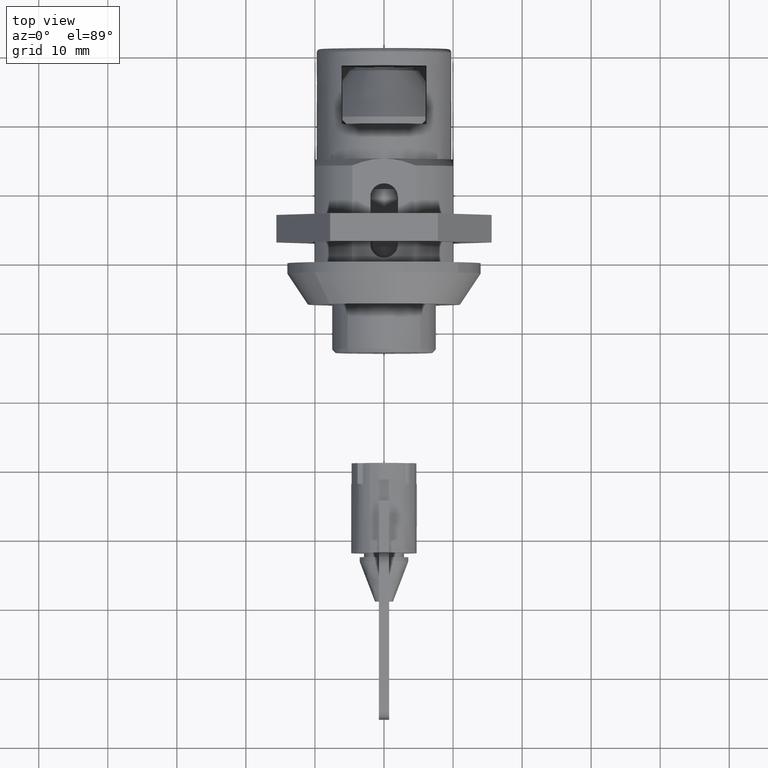
[diagram: clean part render]
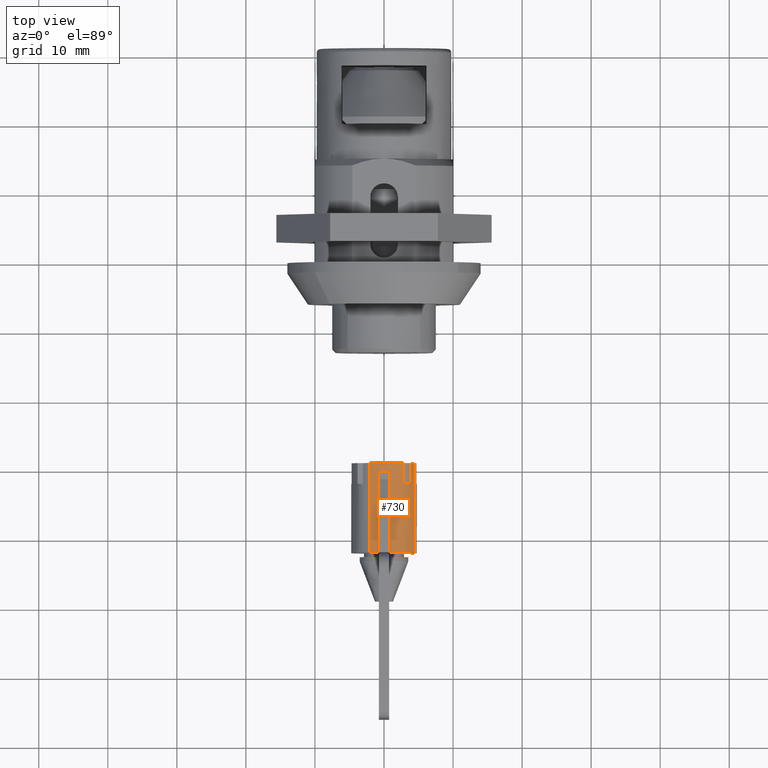
[diagram: same view with one face highlighted and labeled with its STEP entity id]
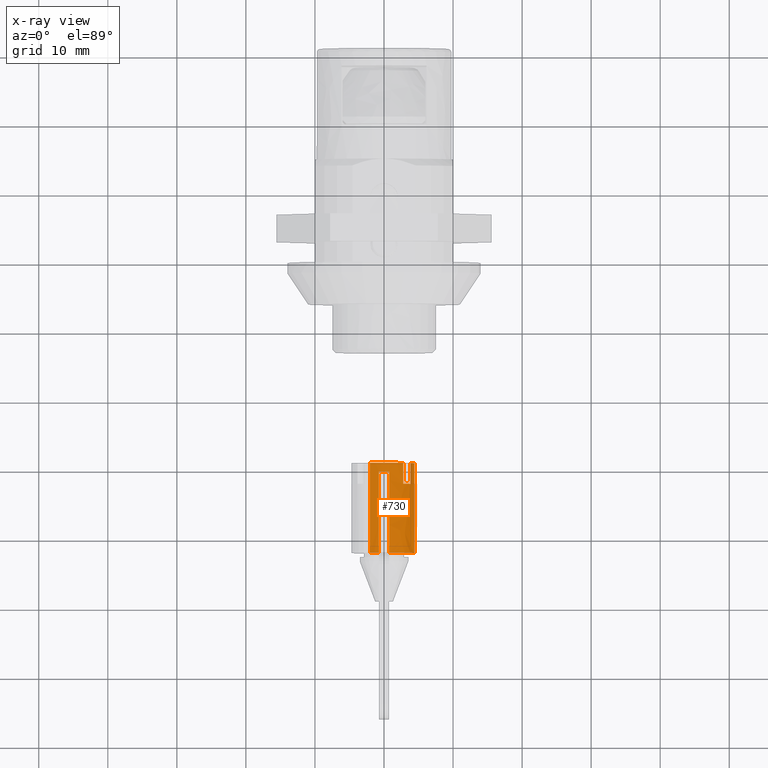
[diagram: x-ray of the same camera — body ghosted, the highlighted face saturated]
A machine part, top view. The second image highlights one B-rep face of the part: STEP entity #730.
The next image is the same camera in x-ray: the body ghosted, the highlighted face saturated — about 0% of this face is hidden behind the body in this view.
In plain terms, the highlighted face is a freeform B-spline surface patch.
Its self-contained STEP definition (entity closure, byte-faithful):
#309=CARTESIAN_POINT('',(-232.000000000000110,2.059428148010018,4.280333597184102));
#310=VERTEX_POINT('',#309);
#329=CARTESIAN_POINT('',(-219.0,2.059428546056810,4.280333405668925));
#330=VERTEX_POINT('',#329);
#331=CARTESIAN_POINT('',(-219.0,2.059428546056810,4.280333405668925));
#332=CARTESIAN_POINT('',(-232.000000000000110,2.059428148010018,4.280333597184102));
#333=QUASI_UNIFORM_CURVE('',1,(#331,#332),.UNSPECIFIED.,.F.,.U.);
#334=EDGE_CURVE('',#330,#310,#333,.T.);
#528=CARTESIAN_POINT('',(-219.0,-4.391110705914510,1.811255577880300));
#529=VERTEX_POINT('',#528);
#537=CARTESIAN_POINT('',(-232.000000000000110,-4.391110795444835,1.811255360827790));
#538=VERTEX_POINT('',#537);
#539=CARTESIAN_POINT('',(-219.0,-4.391110705914510,1.811255577880300));
#540=CARTESIAN_POINT('',(-232.000000000000110,-4.391110795444835,1.811255360827790));
#541=QUASI_UNIFORM_CURVE('',1,(#539,#540),.UNSPECIFIED.,.F.,.U.);
#542=EDGE_CURVE('',#529,#538,#541,.T.);
#569=CARTESIAN_POINT('',(-218.675000000000010,-4.391110787881844,1.811255379163100));
#570=CARTESIAN_POINT('',(-218.674999999999980,-2.579855408718631,6.202366167044945));
#571=CARTESIAN_POINT('',(-218.675000000000010,1.811255379163214,4.391110787881730));
#572=CARTESIAN_POINT('',(-218.674999999999980,1.936927083363602,4.339273437098022));
#573=CARTESIAN_POINT('',(-218.674999999999930,2.059428388645782,4.280333481405259));
#574=CARTESIAN_POINT('',(-232.333125000000110,-4.391110787881844,1.811255379163100));
#575=CARTESIAN_POINT('',(-232.333125000000140,-2.579855408718631,6.202366167044945));
#576=CARTESIAN_POINT('',(-232.333125000000110,1.811255379163214,4.391110787881730));
#577=CARTESIAN_POINT('',(-232.333125000000140,1.936927083363602,4.339273437098022));
#578=CARTESIAN_POINT('',(-232.333125000000110,2.059428388645782,4.280333481405259));
#586=(BOUNDED_SURFACE()B_SPLINE_SURFACE(2,1,((#569,#574),(#570,#575),(#571,#576),(#572,#577),(#573,#578)),.UNSPECIFIED.,.F.,.F.,.U.)B_SPLINE_SURFACE_WITH_KNOTS((3,2,3),(2,2),(0.0,7.870057685088804,8.184859992492356),(0.0,13.658125000000190),.UNSPECIFIED.)GEOMETRIC_REPRESENTATION_ITEM()RATIONAL_B_SPLINE_SURFACE(((1.0,1.0),(0.707106781186548,0.707106781186548),(1.0,1.0),(0.988284271247462,0.988284271247462),(0.977505800795127,0.977505800795127)))REPRESENTATION_ITEM('')SURFACE());
#587=CARTESIAN_POINT('',(-232.0,0.750000000000000,4.690415759823321));
#588=VERTEX_POINT('',#587);
#589=CARTESIAN_POINT('',(-232.0,0.750000000000000,4.690415759823321));
#590=CARTESIAN_POINT('',(-231.999999999999690,1.203268584549943,4.618075191212794));
#591=CARTESIAN_POINT('',(-232.000000000000400,1.645855694291255,4.479422601629361));
#592=CARTESIAN_POINT('',(-232.000000000000110,2.059428148010018,4.280333597184102));
#593=B_SPLINE_CURVE_WITH_KNOTS('',3,(#589,#590,#591,#592),.UNSPECIFIED.,.F.,.U.,(4,4),(0.000000014318640,1.376975513592877),.UNSPECIFIED.);
#594=EDGE_CURVE('',#588,#310,#593,.T.);
#595=ORIENTED_EDGE('',*,*,#594,.F.);
#596=CARTESIAN_POINT('',(-228.0,0.750000000000000,4.690415759823321));
#597=VERTEX_POINT('',#596);
#598=CARTESIAN_POINT('',(-228.0,0.750000000000000,4.690415759823321));
#599=CARTESIAN_POINT('',(-232.0,0.750000000000000,4.690415759823321));
#600=QUASI_UNIFORM_CURVE('',1,(#598,#599),.UNSPECIFIED.,.F.,.U.);
#601=EDGE_CURVE('',#597,#588,#600,.T.);
#602=ORIENTED_EDGE('',*,*,#601,.F.);
#603=CARTESIAN_POINT('',(-226.242444563790000,0.750000000000028,4.690415759823321));
#604=VERTEX_POINT('',#603);
#605=CARTESIAN_POINT('',(-226.242444563790000,0.750000000000028,4.690415759823321));
#606=CARTESIAN_POINT('',(-228.0,0.750000000000000,4.690415759823321));
#607=QUASI_UNIFORM_CURVE('',1,(#605,#606),.UNSPECIFIED.,.F.,.U.);
#608=EDGE_CURVE('',#604,#597,#607,.T.);
#609=ORIENTED_EDGE('',*,*,#608,.F.);
#610=CARTESIAN_POINT('',(-224.475236736999990,0.750000000000028,4.690415759823321));
#611=VERTEX_POINT('',#610);
#612=CARTESIAN_POINT('',(-224.475236736999990,0.750000000000028,4.690415759823321));
#613=CARTESIAN_POINT('',(-226.242444563790000,0.750000000000028,4.690415759823321));
#614=QUASI_UNIFORM_CURVE('',1,(#612,#613),.UNSPECIFIED.,.F.,.U.);
#615=EDGE_CURVE('',#611,#604,#614,.T.);
#616=ORIENTED_EDGE('',*,*,#615,.F.);
#617=CARTESIAN_POINT('',(-221.475236736999990,0.750000000000000,4.690415759823321));
#618=VERTEX_POINT('',#617);
#619=CARTESIAN_POINT('',(-221.475236736999990,0.750000000000000,4.690415759823321));
#620=CARTESIAN_POINT('',(-224.475236736999990,0.750000000000028,4.690415759823321));
#621=QUASI_UNIFORM_CURVE('',1,(#619,#620),.UNSPECIFIED.,.F.,.U.);
#622=EDGE_CURVE('',#618,#611,#621,.T.);
#623=ORIENTED_EDGE('',*,*,#622,.F.);
#624=CARTESIAN_POINT('',(-220.242444563790000,0.750000000000028,4.690415759823321));
#625=VERTEX_POINT('',#624);
#626=CARTESIAN_POINT('',(-220.242444563790000,0.750000000000028,4.690415759823321));
#627=CARTESIAN_POINT('',(-221.475236736999990,0.750000000000000,4.690415759823321));
#628=QUASI_UNIFORM_CURVE('',1,(#626,#627),.UNSPECIFIED.,.F.,.U.);
#629=EDGE_CURVE('',#625,#618,#628,.T.);
#630=ORIENTED_EDGE('',*,*,#629,.F.);
#631=CARTESIAN_POINT('',(-220.242444563790000,-0.750000000000028,4.690415759823321));
#632=VERTEX_POINT('',#631);
#633=CARTESIAN_POINT('',(-220.242444563790000,-0.750000000000028,4.690415759823321));
#634=CARTESIAN_POINT('',(-220.242444563790400,-0.254199974265445,4.769830104400082));
#635=CARTESIAN_POINT('',(-220.242444563789490,0.254200460822369,4.769889996063800));
#636=CARTESIAN_POINT('',(-220.242444563790000,0.750000000000028,4.690415759823321));
#637=B_SPLINE_CURVE_WITH_KNOTS('',3,(#633,#634,#635,#636),.UNSPECIFIED.,.F.,.U.,(4,4),(0.000000022429125,1.506328316612472),.UNSPECIFIED.);
#638=EDGE_CURVE('',#632,#625,#637,.T.);
#639=ORIENTED_EDGE('',*,*,#638,.F.);
#640=CARTESIAN_POINT('',(-221.475236736999990,-0.750000000000028,4.690415759823321));
#641=VERTEX_POINT('',#640);
#642=CARTESIAN_POINT('',(-220.242444563790000,-0.750000000000028,4.690415759823321));
#643=CARTESIAN_POINT('',(-221.475236736999990,-0.750000000000028,4.690415759823321));
#644=QUASI_UNIFORM_CURVE('',1,(#642,#643),.UNSPECIFIED.,.F.,.U.);
#645=EDGE_CURVE('',#632,#641,#644,.T.);
#646=ORIENTED_EDGE('',*,*,#645,.T.);
#647=CARTESIAN_POINT('',(-224.475236736999990,-0.750000000000028,4.690415759823321));
#648=VERTEX_POINT('',#647);
#649=CARTESIAN_POINT('',(-221.475236736999990,-0.750000000000028,4.690415759823321));
#650=CARTESIAN_POINT('',(-224.475236736999990,-0.750000000000028,4.690415759823321));
#651=QUASI_UNIFORM_CURVE('',1,(#649,#650),.UNSPECIFIED.,.F.,.U.);
#652=EDGE_CURVE('',#641,#648,#651,.T.);
#653=ORIENTED_EDGE('',*,*,#652,.T.);
#654=CARTESIAN_POINT('',(-226.242444563790000,-0.750000000000028,4.690415759823321));
#655=VERTEX_POINT('',#654);
#656=CARTESIAN_POINT('',(-224.475236736999990,-0.750000000000028,4.690415759823321));
#657=CARTESIAN_POINT('',(-226.242444563790000,-0.750000000000028,4.690415759823321));
#658=QUASI_UNIFORM_CURVE('',1,(#656,#657),.UNSPECIFIED.,.F.,.U.);
#659=EDGE_CURVE('',#648,#655,#658,.T.);
#660=ORIENTED_EDGE('',*,*,#659,.T.);
#661=CARTESIAN_POINT('',(-228.0,-0.750000000000000,4.690415759823321));
#662=VERTEX_POINT('',#661);
#663=CARTESIAN_POINT('',(-226.242444563790000,-0.750000000000028,4.690415759823321));
#664=CARTESIAN_POINT('',(-228.0,-0.750000000000000,4.690415759823321));
#665=QUASI_UNIFORM_CURVE('',1,(#663,#664),.UNSPECIFIED.,.F.,.U.);
#666=EDGE_CURVE('',#655,#662,#665,.T.);
#667=ORIENTED_EDGE('',*,*,#666,.T.);
#668=CARTESIAN_POINT('',(-232.0,-0.750000000000000,4.690415759823321));
#669=VERTEX_POINT('',#668);
#670=CARTESIAN_POINT('',(-228.0,-0.750000000000000,4.690415759823321));
#671=CARTESIAN_POINT('',(-232.0,-0.750000000000000,4.690415759823321));
#672=QUASI_UNIFORM_CURVE('',1,(#670,#671),.UNSPECIFIED.,.F.,.U.);
#673=EDGE_CURVE('',#662,#669,#672,.T.);
#674=ORIENTED_EDGE('',*,*,#673,.T.);
#675=CARTESIAN_POINT('',(-232.000000000000110,-4.391110795444835,1.811255360827790));
#676=CARTESIAN_POINT('',(-231.999999999999690,-4.179585469904753,2.325173814464018));
#677=CARTESIAN_POINT('',(-232.0,-3.600686812577631,3.233768947145614));
#678=CARTESIAN_POINT('',(-232.000000000002590,-2.316405136281033,4.249220475768161));
#679=CARTESIAN_POINT('',(-231.999999999995400,-1.298836283835198,4.603090680962096));
#680=CARTESIAN_POINT('',(-232.0,-0.750000000000000,4.690415759823321));
#681=B_SPLINE_CURVE_WITH_KNOTS('',3,(#675,#676,#677,#678,#679,#680),.UNSPECIFIED.,.F.,.U.,(4,1,1,4),(0.000154460573000,1.667270261618192,3.182846416420825,4.849962217466035),.UNSPECIFIED.);
#682=EDGE_CURVE('',#538,#669,#681,.T.);
#683=ORIENTED_EDGE('',*,*,#682,.F.);
#684=ORIENTED_EDGE('',*,*,#542,.F.);
#685=CARTESIAN_POINT('',(-219.0,-3.845563857907115,2.788214234013935));
#686=VERTEX_POINT('',#685);
#687=CARTESIAN_POINT('',(-219.0,-4.391110705914510,1.811255577880300));
#688=CARTESIAN_POINT('',(-218.999999999999690,-4.248611040734579,2.156898700228647));
#689=CARTESIAN_POINT('',(-219.0,-4.065041591468645,2.485566030888796));
#690=CARTESIAN_POINT('',(-219.0,-3.845563857907115,2.788214234013935));
#691=B_SPLINE_CURVE_WITH_KNOTS('',3,(#687,#688,#689,#690),.UNSPECIFIED.,.F.,.U.,(4,4),(0.000000013298762,1.121603413675485),.UNSPECIFIED.);
#692=EDGE_CURVE('',#529,#686,#691,.T.);
#693=ORIENTED_EDGE('',*,*,#692,.T.);
#694=CARTESIAN_POINT('',(-222.0,-3.845563857907115,2.788214234013935));
#695=VERTEX_POINT('',#694);
#696=CARTESIAN_POINT('',(-222.0,-3.845563857907115,2.788214234013935));
#697=CARTESIAN_POINT('',(-219.0,-3.845563857907115,2.788214234013935));
#698=QUASI_UNIFORM_CURVE('',1,(#696,#697),.UNSPECIFIED.,.F.,.U.);
#699=EDGE_CURVE('',#695,#686,#698,.T.);
#700=ORIENTED_EDGE('',*,*,#699,.F.);
#701=CARTESIAN_POINT('',(-222.0,-2.788214234014045,3.845563857907005));
#702=VERTEX_POINT('',#701);
#703=CARTESIAN_POINT('',(-222.0,-3.845563857907115,2.788214234013935));
#704=CARTESIAN_POINT('',(-222.0,-3.551893053922955,3.193562783757312));
#705=CARTESIAN_POINT('',(-222.000000000000110,-3.193529530767234,3.551863331800801));
#706=CARTESIAN_POINT('',(-222.0,-2.788214234014045,3.845563857907005));
#707=B_SPLINE_CURVE_WITH_KNOTS('',3,(#703,#704,#705,#706),.UNSPECIFIED.,.F.,.U.,(4,4),(0.000000022078439,1.501586976794035),.UNSPECIFIED.);
#708=EDGE_CURVE('',#695,#702,#707,.T.);
#709=ORIENTED_EDGE('',*,*,#708,.T.);
#710=CARTESIAN_POINT('',(-219.0,-2.788214234014045,3.845563857907005));
#711=VERTEX_POINT('',#710);
#712=CARTESIAN_POINT('',(-222.0,-2.788214234014045,3.845563857907005));
#713=CARTESIAN_POINT('',(-219.0,-2.788214234014045,3.845563857907005));
#714=QUASI_UNIFORM_CURVE('',1,(#712,#713),.UNSPECIFIED.,.F.,.U.);
#715=EDGE_CURVE('',#702,#711,#714,.T.);
#716=ORIENTED_EDGE('',*,*,#715,.T.);
#717=CARTESIAN_POINT('',(-219.0,-2.788214234014045,3.845563857907005));
#718=CARTESIAN_POINT('',(-218.999999999999890,-2.465069149875751,4.079994876706088));
#719=CARTESIAN_POINT('',(-219.000000000000200,-1.853297813271271,4.414949045104226));
#720=CARTESIAN_POINT('',(-219.000000000000710,-0.646955017330979,4.765853809071287));
#721=CARTESIAN_POINT('',(-218.999999999998210,0.677314763383957,4.784052686607931));
#722=CARTESIAN_POINT('',(-219.000000000001310,1.651779495337165,4.476585379792180));
#723=CARTESIAN_POINT('',(-219.0,2.059428546056810,4.280333405668925));
#724=B_SPLINE_CURVE_WITH_KNOTS('',3,(#717,#718,#719,#720,#721,#722,#723),.UNSPECIFIED.,.F.,.U.,(4,1,1,1,4),(0.000000230389134,1.197662328253991,2.075981322944105,3.752676766494966,5.110029106871088),.UNSPECIFIED.);
#725=EDGE_CURVE('',#711,#330,#724,.T.);
#726=ORIENTED_EDGE('',*,*,#725,.T.);
#727=ORIENTED_EDGE('',*,*,#334,.T.);
#728=EDGE_LOOP('',(#595,#602,#609,#616,#623,#630,#639,#646,#653,#660,#667,#674,#683,#684,#693,#700,#709,#716,#726,#727));
#729=FACE_OUTER_BOUND('',#728,.T.);
#730=ADVANCED_FACE('',(#729),#586,.T.);